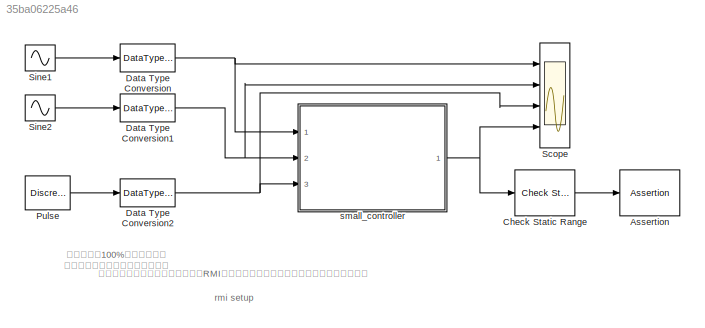
MODEL slx_35ba06225a46
KIND model
CONFIG AbsTol = auto
CONFIG FixedStep = auto
CONFIG MaxStep = auto
CONFIG MinStep = auto
CONFIG RelTol = 1e-3
CONFIG SampleTimeConstraint = Unconstrained
CONFIG Solver = FixedStepDiscrete
CONFIG SolverMode = SingleTasking
CONFIG SolverName = FixedStepDiscrete
CONFIG StartTime = 0.0
CONFIG StopTime = 10
BLOCK [Assertion] Assertion
BLOCK [Reference] Check Static Range  REF=simulink/Model
Verification/Check 
Static Range
  Description = -0.5 <= u <= 0.5
  Ports = [1, 1]
  SourceBlock = simulink/Model\nVerification/Check \nStatic Range
  SourceType = Checks_SRange
BLOCK [DataTypeConversion] Data Type Conversion
  OutDataTypeStr = fixdt(1,16,10)
  OutMax = 8.5
  RndMeth = Floor
  SaturateOnIntegerOverflow = off
BLOCK [DataTypeConversion] Data Type Conversion1
  OutDataTypeStr = fixdt(1,16,10)
  OutMax = 8.5
  RndMeth = Floor
  SaturateOnIntegerOverflow = off
BLOCK [DataTypeConversion] Data Type Conversion2
  OutDataTypeStr = fixdt(1,16,10)
  RndMeth = Floor
  SaturateOnIntegerOverflow = off
BLOCK [DiscretePulseGenerator] Pulse
  Period = 10
  Ports = [0, 1]
  PulseWidth = 5
  SampleTime = 0.1
BLOCK [Scope] Scope
  NumInputPorts = 4
  Ports = [4]
  ScopeSpecificationString = Simulink.scopes.TimeScopeBlockCfg('CurrentConfiguration', extmgr.ConfigurationSet(extmgr.Configuration('Core','General UI',true),extmgr.Configuration('Core','Source UI',true),extmgr.Configuration('Sources','WiredSimulink',true,'DataLoggingSaveFormat','StructureWithTime','DataLoggingLimitDataPoints',true,'DataLoggingDecimation','1','DataLoggingDecimateData',true),extmgr.Configuration('Visuals','Tim...<+3743ch>
BLOCK [Sin] Sine1
  Amplitude = 4
  Bias = 0 %6
  Frequency = 0.5*2*pi
  Ports = [0, 1]
  SampleTime = 0.1
BLOCK [Sin] Sine2
  Amplitude = 4
  Bias = 6
  Frequency = 0.2*2*pi
  Phase = pi/2
  Ports = [0, 1]
  SampleTime = 0.1
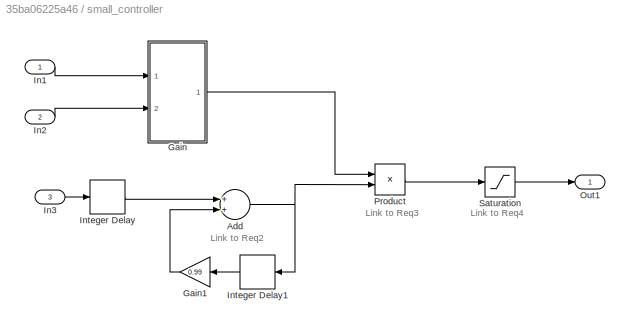
BLOCK [SubSystem] small_controller
  Ports = [3, 1]
  RequestExecContextInheritance = off
  Variant = off
BLOCK [Sum] small_controller/Add
  InputSameDT = off
  Ports = [2, 1]
  SaturateOnIntegerOverflow = off
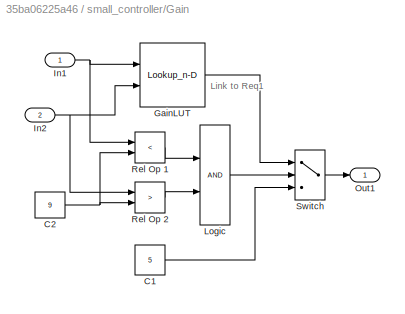
BLOCK [SubSystem] small_controller/Gain
  Ports = [2, 1]
  RequestExecContextInheritance = off
  Variant = off
BLOCK [Constant] small_controller/Gain/C1
  OutDataTypeStr = fixdt(1,16,10)
  Value = 5
BLOCK [Constant] small_controller/Gain/C2
  OutDataTypeStr = fixdt(1,16,10)
  Value = 9
BLOCK [Lookup_n-D] small_controller/Gain/GainLUT
  BreakpointsForDimension1 = [1:0.25:10]
  BreakpointsForDimension2 = [1:0.25:10]
  IndexSearchMethod = Evenly spaced points
  InterpMethod = Flat
  Ports = [2, 1]
  Table = sqrt([1:0.25:10]'*[1:0.25:10])
BLOCK [Inport] small_controller/Gain/In1
  IconDisplay = Port number
BLOCK [Inport] small_controller/Gain/In2
  IconDisplay = Port number
  Port = 2
BLOCK [Logic] small_controller/Gain/Logic
  AllPortsSameDT = off
  OutDataTypeStr = boolean
  Ports = [2, 1]
BLOCK [Outport] small_controller/Gain/Out1
  IconDisplay = Port number
BLOCK [RelationalOperator] small_controller/Gain/Rel Op 1
  InputSameDT = off
  Operator = <
  OutDataTypeStr = boolean
  Ports = [2, 1]
BLOCK [RelationalOperator] small_controller/Gain/Rel Op 2
  InputSameDT = off
  Operator = >
  OutDataTypeStr = boolean
  Ports = [2, 1]
BLOCK [Switch] small_controller/Gain/Switch
  InputSameDT = off
  SaturateOnIntegerOverflow = off
  Threshold = 1
BLOCK [Gain] small_controller/Gain1
  Gain = 0.99
  OutDataTypeStr = Inherit: Inherit via internal rule
  ParamDataTypeStr = Inherit: Inherit via internal rule
  SaturateOnIntegerOverflow = off
BLOCK [Inport] small_controller/In1
  IconDisplay = Port number
BLOCK [Inport] small_controller/In2
  IconDisplay = Port number
  Port = 2
BLOCK [Inport] small_controller/In3
  IconDisplay = Port number
  Port = 3
BLOCK [Delay] small_controller/Integer Delay
  DelayLength = 1
  InputPortMap = u0
  InputProcessing = Inherited
  Ports = [1, 1]
BLOCK [Delay] small_controller/Integer Delay1
  DelayLength = 1
  InputPortMap = u0
  InputProcessing = Inherited
  Ports = [1, 1]
BLOCK [Outport] small_controller/Out1
  IconDisplay = Port number
BLOCK [Product] small_controller/Product
  InputSameDT = off
  OutDataTypeStr = Inherit: Inherit via internal rule
  Ports = [2, 1]
  SaturateOnIntegerOverflow = off
BLOCK [Saturate] small_controller/Saturation
  InputPortMap = u0
  Ports = [1, 1]
ANNOTATION (root): 要求仕様管理インターフェース（RMI）が動作しない場合は下記を実行して下さい。
ANNOTATION (root): rmi setup
ANNOTATION (root): カバレッジ100%を満たすよう テストベクタを変更して下さい。
ANNOTATION small_controller: Link to Req2
ANNOTATION small_controller: Link to Req3
ANNOTATION small_controller: Link to Req4
ANNOTATION small_controller/Gain: Link to Req1
LINE Check Static Range:1 -> Assertion:1
NET Data Type Conversion1:1 -> Scope:2, small_controller:2
NET Data Type Conversion2:1 -> Scope:3, small_controller:3
NET Data Type Conversion:1 -> Scope:1, small_controller:1
LINE Pulse:1 -> Data Type Conversion2:1
LINE Sine1:1 -> Data Type Conversion:1
LINE Sine2:1 -> Data Type Conversion1:1
NET small_controller/Add:1 -> small_controller/Integer Delay1:1, small_controller/Product:2
LINE small_controller/Gain/C1:1 -> small_controller/Gain/Switch:3
NET small_controller/Gain/C2:1 -> small_controller/Gain/Rel Op 1:2, small_controller/Gain/Rel Op 2:2
LINE small_controller/Gain/GainLUT:1 -> small_controller/Gain/Switch:1
NET small_controller/Gain/In1:1 -> small_controller/Gain/GainLUT:1, small_controller/Gain/Rel Op 1:1
NET small_controller/Gain/In2:1 -> small_controller/Gain/GainLUT:2, small_controller/Gain/Rel Op 2:1
LINE small_controller/Gain/Logic:1 -> small_controller/Gain/Switch:2
LINE small_controller/Gain/Rel Op 1:1 -> small_controller/Gain/Logic:1
LINE small_controller/Gain/Rel Op 2:1 -> small_controller/Gain/Logic:2
LINE small_controller/Gain/Switch:1 -> small_controller/Gain/Out1:1
LINE small_controller/Gain1:1 -> small_controller/Add:2
LINE small_controller/Gain:1 -> small_controller/Product:1
LINE small_controller/In1:1 -> small_controller/Gain:1
LINE small_controller/In2:1 -> small_controller/Gain:2
LINE small_controller/In3:1 -> small_controller/Integer Delay:1
LINE small_controller/Integer Delay1:1 -> small_controller/Gain1:1
LINE small_controller/Integer Delay:1 -> small_controller/Add:1
LINE small_controller/Product:1 -> small_controller/Saturation:1
LINE small_controller/Saturation:1 -> small_controller/Out1:1
NET small_controller:1 -> Check Static Range:1, Scope:4
note: NET lines group one-source signal fan-out (src -> all destinations, sorted); 1:1 wires keep LINE
